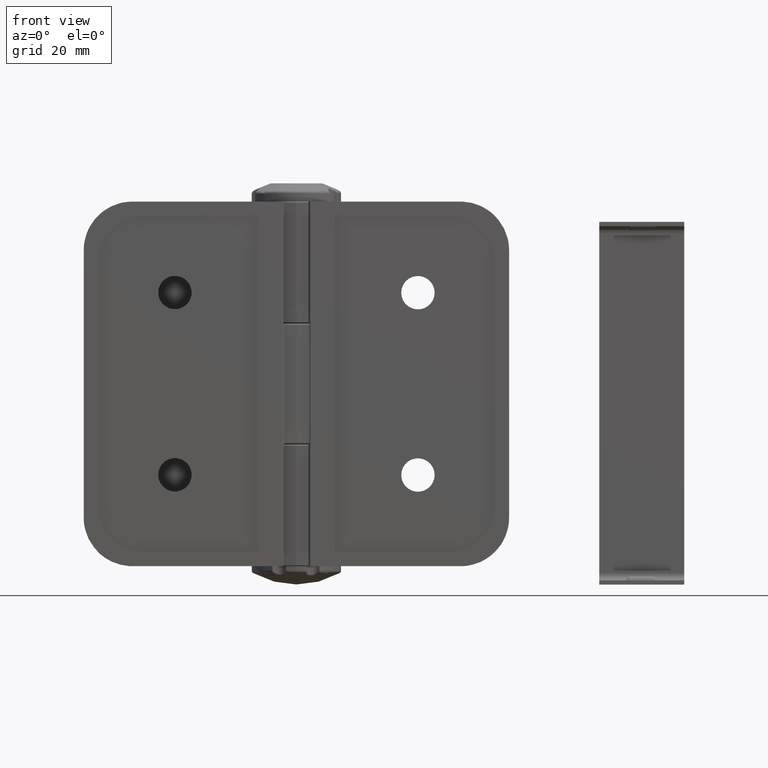
[diagram: clean part render]
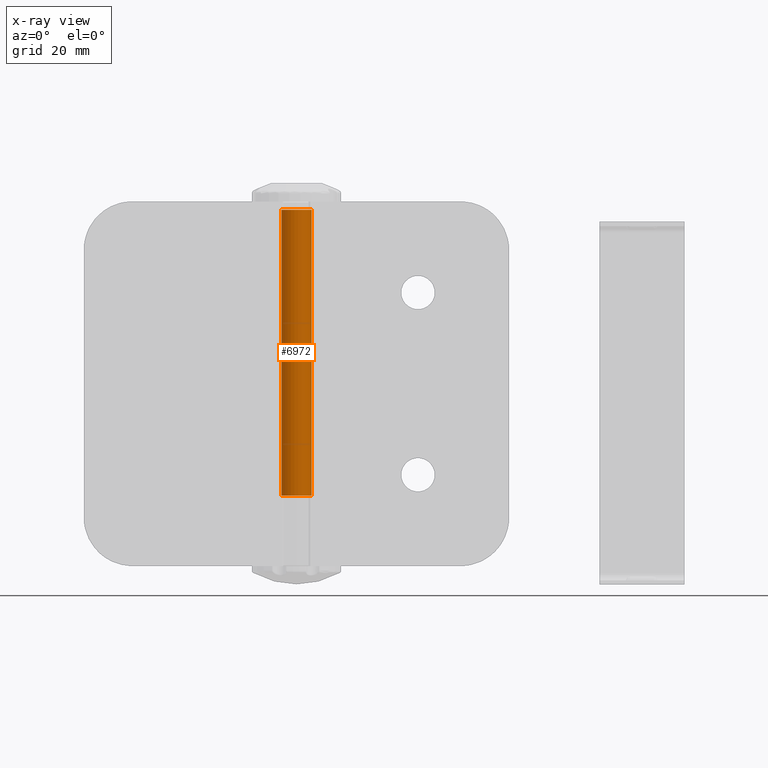
[diagram: x-ray — body ghosted, one internal face saturated and labeled with its STEP entity id]
A machine part, front view, then the same camera in x-ray: the body is ghosted and one INTERNAL B-rep face — a face not visible from any outside direction — is saturated and labeled: STEP entity #6972.
In plain terms, the highlighted cylindrical surface (bore or boss wall) has radius 2.5 mm, axis along (-0, 0, -1).
Its self-contained STEP definition (entity closure, byte-faithful):
#418=FACE_BOUND('',#2388,.T.);
#1527=CYLINDRICAL_SURFACE('',#7701,2.5);
#1920=FACE_OUTER_BOUND('',#2387,.T.);
#2387=EDGE_LOOP('',(#6407));
#2388=EDGE_LOOP('',(#6408));
#2760=CIRCLE('',#7702,2.5);
#2761=CIRCLE('',#7703,2.5);
#3429=VERTEX_POINT('',#27892);
#3430=VERTEX_POINT('',#27894);
#4433=EDGE_CURVE('',#3429,#3429,#2760,.T.);
#4434=EDGE_CURVE('',#3430,#3430,#2761,.F.);
#6407=ORIENTED_EDGE('',*,*,#4433,.F.);
#6408=ORIENTED_EDGE('',*,*,#4434,.T.);
#6972=ADVANCED_FACE('',(#1920,#418),#1527,.T.);
#7701=AXIS2_PLACEMENT_3D('',#27891,#9583,#9584);
#7702=AXIS2_PLACEMENT_3D('',#27893,#9585,#9586);
#7703=AXIS2_PLACEMENT_3D('',#27895,#9587,#9588);
#9583=DIRECTION('center_axis',(1.,0.,0.));
#9584=DIRECTION('ref_axis',(0.,0.,1.));
#9585=DIRECTION('center_axis',(-1.,0.,0.));
#9586=DIRECTION('ref_axis',(0.,0.,1.));
#9587=DIRECTION('center_axis',(1.,0.,0.));
#9588=DIRECTION('ref_axis',(0.,0.,1.));
#27891=CARTESIAN_POINT('Origin',(4.47,0.,0.));
#27892=CARTESIAN_POINT('',(4.47,-3.06161699786838E-16,-2.5));
#27893=CARTESIAN_POINT('Origin',(4.47,0.,0.));
#27894=CARTESIAN_POINT('',(51.4700000036,3.06161699786838E-16,-2.5));
#27895=CARTESIAN_POINT('Origin',(51.4700000036,0.,0.));